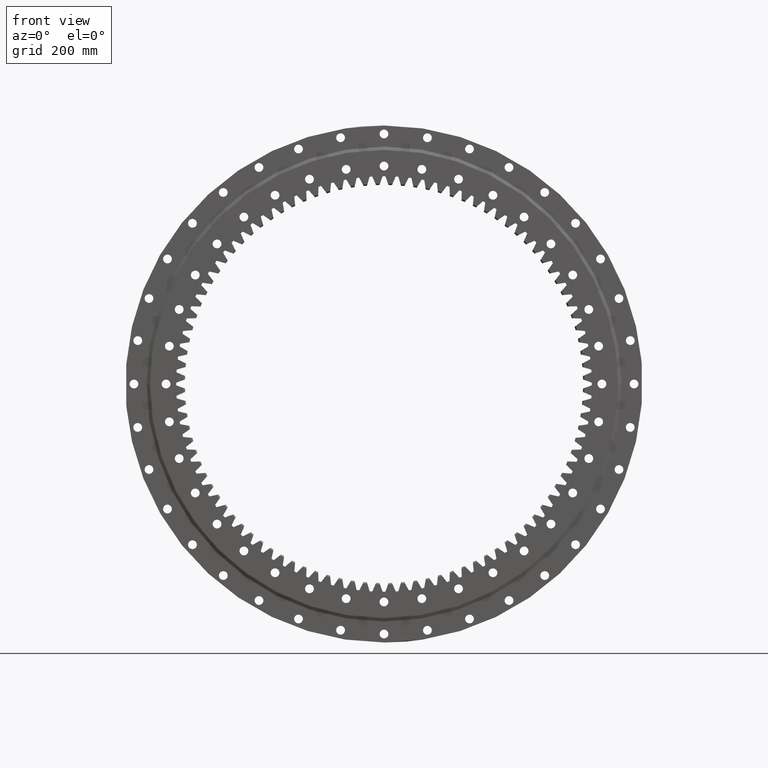
[diagram: clean part render]
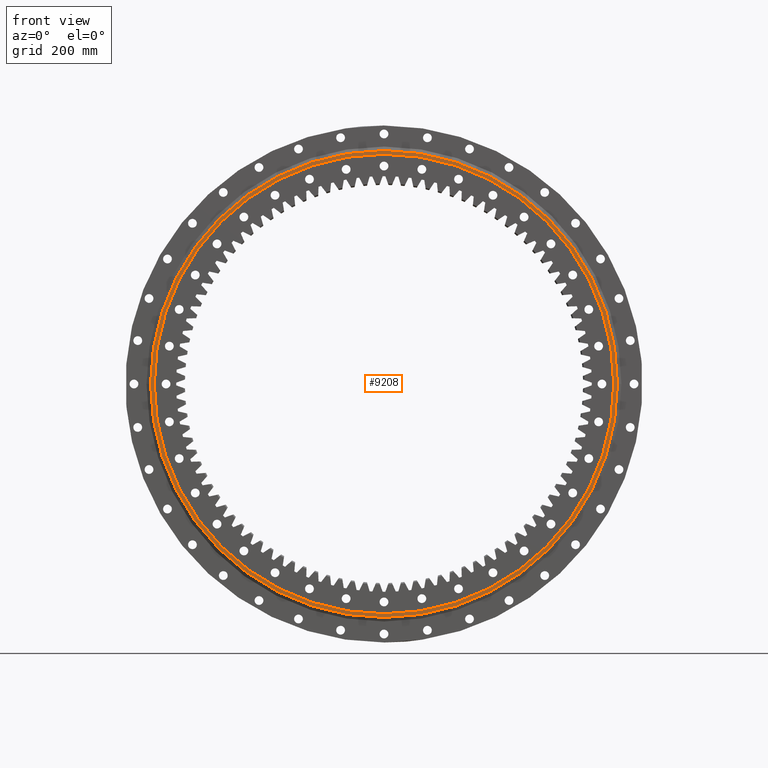
[diagram: same view with one face highlighted and labeled with its STEP entity id]
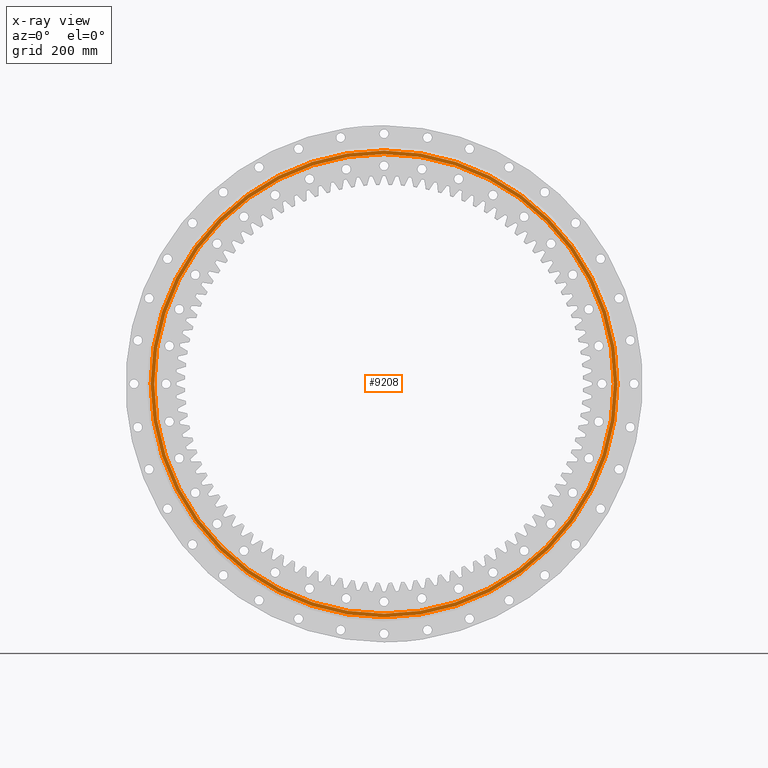
[diagram: x-ray of the same camera — body ghosted, the highlighted face saturated]
A machine part, front view. The second image highlights one B-rep face of the part: STEP entity #9208.
The next image is the same camera in x-ray: the body ghosted, the highlighted face saturated — about 0% of this face is hidden behind the body in this view.
In plain terms, the highlighted planar face has unit normal (-0, -1, 0).
Its self-contained STEP definition (entity closure, byte-faithful):
#870 = DIRECTION ( 'NONE',  ( 5.551115123125783900E-017, 6.027269406216919500E-017, 1.000000000000000000 ) ) ;
#1022 = CARTESIAN_POINT ( 'NONE',  ( -4.353078857802803400E-015, -54.99999999999986500, 2.793526163813868500E-015 ) ) ;
#1514 = FACE_OUTER_BOUND ( 'NONE', #17380, .T. ) ;
#2714 = AXIS2_PLACEMENT_3D ( 'NONE', #10491, #5681, #6084 ) ;
#2907 = DIRECTION ( 'NONE',  ( 5.551115123125783900E-017, 6.027269406216919500E-017, 1.000000000000000000 ) ) ;
#2989 = DIRECTION ( 'NONE',  ( -7.914688832368751900E-017, -1.000000000000000000, 6.148959851358355100E-017 ) ) ;
#3345 = AXIS2_PLACEMENT_3D ( 'NONE', #21873, #21998, #23701 ) ;
#3347 = DIRECTION ( 'NONE',  ( -7.914688832368751900E-017, -1.000000000000000000, 6.148959851358355100E-017 ) ) ;
#3530 = CARTESIAN_POINT ( 'NONE',  ( -4.353078857802803400E-015, -54.99999999999986500, 2.793526163813868500E-015 ) ) ;
#5569 = VERTEX_POINT ( 'NONE', #6934 ) ;
#5681 = DIRECTION ( 'NONE',  ( -7.914688832368751900E-017, -1.000000000000000000, 6.148959851358355100E-017 ) ) ;
#6084 = DIRECTION ( 'NONE',  ( 5.551115123125783900E-017, 6.122553444624025500E-017, 1.000000000000000000 ) ) ;
#6490 = CIRCLE ( 'NONE', #3345, 680.0000000000000000 ) ;
#6741 = CARTESIAN_POINT ( 'NONE',  ( -1.269752753408109100E-013, -54.99999999999990800, -690.7500000000000000 ) ) ;
#6934 = CARTESIAN_POINT ( 'NONE',  ( 3.399124885518854300E-014, -54.99999999999982900, 690.7500000000000000 ) ) ;
#7476 = AXIS2_PLACEMENT_3D ( 'NONE', #8789, #14908, #16731 ) ;
#7784 = EDGE_CURVE ( 'NONE', #12133, #22744, #21286, .T. ) ;
#8789 = CARTESIAN_POINT ( 'NONE',  ( 3.339450397945252800E-014, -54.99999999999982900, 680.0000000000000000 ) ) ;
#8867 = CIRCLE ( 'NONE', #21231, 690.7500000000000000 ) ;
#9208 = ADVANCED_FACE ( 'NONE', ( #19424, #1514 ), #26235, .T. ) ;
#10153 = ORIENTED_EDGE ( 'NONE', *, *, #14701, .F. ) ;
#10275 = EDGE_CURVE ( 'NONE', #27028, #5569, #8867, .T. ) ;
#10491 = CARTESIAN_POINT ( 'NONE',  ( -4.353078857802803400E-015, -54.99999999999986500, 2.042403794265291600E-015 ) ) ;
#12133 = VERTEX_POINT ( 'NONE', #27862 ) ;
#13327 = ORIENTED_EDGE ( 'NONE', *, *, #10275, .T. ) ;
#14701 = EDGE_CURVE ( 'NONE', #22744, #12133, #6490, .T. ) ;
#14908 = DIRECTION ( 'NONE',  ( -7.914688832368751900E-017, -1.000000000000000000, 6.148959851358355100E-017 ) ) ;
#15739 = EDGE_CURVE ( 'NONE', #5569, #27028, #26544, .T. ) ;
#16731 = DIRECTION ( 'NONE',  ( 5.551115123125783900E-017, 6.148959851358355100E-017, 1.000000000000000000 ) ) ;
#16811 = ORIENTED_EDGE ( 'NONE', *, *, #7784, .F. ) ;
#17380 = EDGE_LOOP ( 'NONE', ( #26761, #13327 ) ) ;
#19269 = EDGE_LOOP ( 'NONE', ( #16811, #10153 ) ) ;
#19424 = FACE_BOUND ( 'NONE', #19269, .T. ) ;
#21231 = AXIS2_PLACEMENT_3D ( 'NONE', #1022, #3347, #870 ) ;
#21286 = CIRCLE ( 'NONE', #2714, 680.0000000000000000 ) ;
#21873 = CARTESIAN_POINT ( 'NONE',  ( -4.353078857802803400E-015, -54.99999999999986500, 2.042403794265291600E-015 ) ) ;
#21998 = DIRECTION ( 'NONE',  ( -7.914688832368751900E-017, -1.000000000000000000, 6.148959851358355100E-017 ) ) ;
#22744 = VERTEX_POINT ( 'NONE', #26474 ) ;
#23701 = DIRECTION ( 'NONE',  ( 5.551115123125783900E-017, 6.122553444624025500E-017, 1.000000000000000000 ) ) ;
#26235 = PLANE ( 'NONE',  #7476 ) ;
#26474 = CARTESIAN_POINT ( 'NONE',  ( -1.257723784786966200E-013, -54.99999999999990800, -680.0000000000000000 ) ) ;
#26544 = CIRCLE ( 'NONE', #27406, 690.7500000000000000 ) ;
#26761 = ORIENTED_EDGE ( 'NONE', *, *, #15739, .T. ) ;
#27028 = VERTEX_POINT ( 'NONE', #6741 ) ;
#27406 = AXIS2_PLACEMENT_3D ( 'NONE', #3530, #2989, #2907 ) ;
#27862 = CARTESIAN_POINT ( 'NONE',  ( 3.339450397945252800E-014, -54.99999999999982900, 680.0000000000000000 ) ) ;